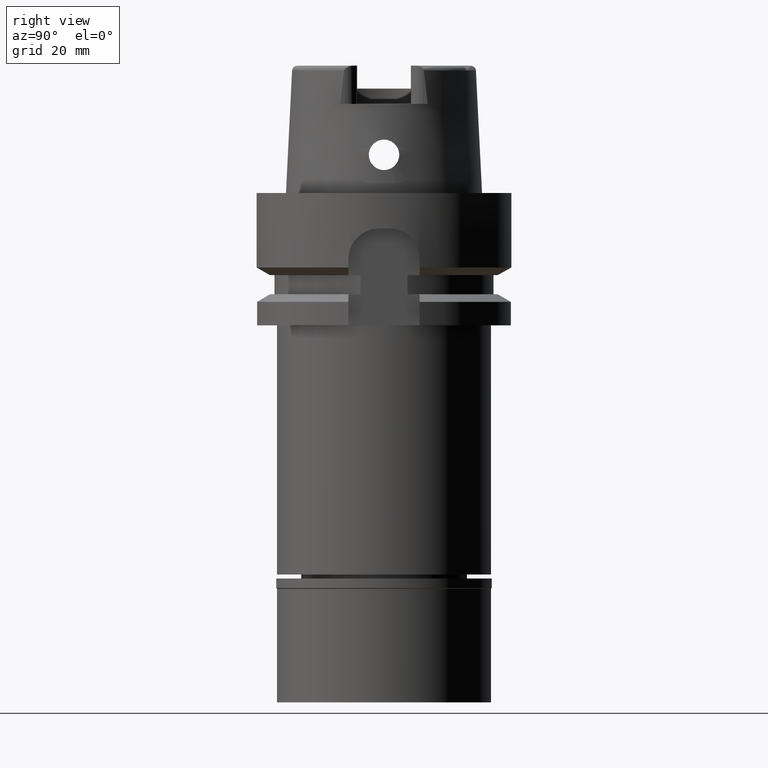
[diagram: clean part render]
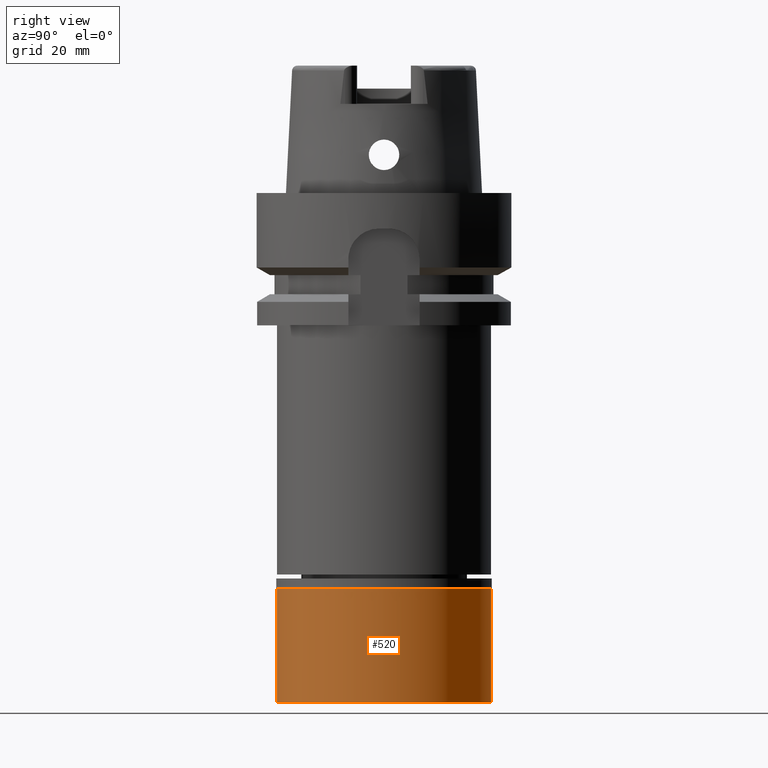
[diagram: same view with one face highlighted and labeled with its STEP entity id]
A machine part, right view. The second image highlights one B-rep face of the part: STEP entity #520.
In plain terms, the highlighted cylindrical surface (partial cylindrical patch) has radius 21 mm, axis along (0, 0, -1).
Its self-contained STEP definition (entity closure, byte-faithful):
#129 = ORIENTED_EDGE ( 'NONE', *, *, #5156, .F. ) ;
#210 = ORIENTED_EDGE ( 'NONE', *, *, #2256, .T. ) ;
#215 = CARTESIAN_POINT ( 'NONE',  ( 0.0000000000000000000, 0.0000000000000000000, -2.000000000000000000 ) ) ;
#309 = CARTESIAN_POINT ( 'NONE',  ( 0.0000000000000000000, 21.00000000000000000, -24.29999999999999716 ) ) ;
#520 = ADVANCED_FACE ( 'NONE', ( #3443 ), #2605, .T. ) ;
#580 = CARTESIAN_POINT ( 'NONE',  ( 0.0000000000000000000, -21.00000000000000000, -2.000000000000000000 ) ) ;
#617 = DIRECTION ( 'NONE',  ( 0.0000000000000000000, -1.000000000000000000, 0.0000000000000000000 ) ) ;
#631 = DIRECTION ( 'NONE',  ( 0.0000000000000000000, 0.0000000000000000000, -1.000000000000000000 ) ) ;
#802 = LINE ( 'NONE', #3405, #4510 ) ;
#815 = VERTEX_POINT ( 'NONE', #309 ) ;
#851 = VERTEX_POINT ( 'NONE', #2386 ) ;
#871 = ORIENTED_EDGE ( 'NONE', *, *, #4714, .T. ) ;
#892 = AXIS2_PLACEMENT_3D ( 'NONE', #215, #631, #5267 ) ;
#1088 = CARTESIAN_POINT ( 'NONE',  ( 0.0000000000000000000, 0.0000000000000000000, -24.29999999999999716 ) ) ;
#1200 = EDGE_CURVE ( 'NONE', #3150, #1659, #2192, .T. ) ;
#1240 = DIRECTION ( 'NONE',  ( 0.0000000000000000000, -1.000000000000000000, 0.0000000000000000000 ) ) ;
#1659 = VERTEX_POINT ( 'NONE', #2770 ) ;
#2190 = EDGE_LOOP ( 'NONE', ( #871, #5378, #210, #129 ) ) ;
#2192 = LINE ( 'NONE', #580, #2763 ) ;
#2256 = EDGE_CURVE ( 'NONE', #1659, #815, #2503, .T. ) ;
#2341 = AXIS2_PLACEMENT_3D ( 'NONE', #1088, #3209, #617 ) ;
#2386 = CARTESIAN_POINT ( 'NONE',  ( 0.0000000000000000000, 21.00000000000000000, -2.000000000000000000 ) ) ;
#2503 = CIRCLE ( 'NONE', #2341, 21.00000000000000000 ) ;
#2605 = CYLINDRICAL_SURFACE ( 'NONE', #4730, 21.00000000000000000 ) ;
#2763 = VECTOR ( 'NONE', #3059, 1000.000000000000000 ) ;
#2770 = CARTESIAN_POINT ( 'NONE',  ( 0.0000000000000000000, -21.00000000000000000, -24.29999999999999716 ) ) ;
#2854 = CARTESIAN_POINT ( 'NONE',  ( 0.0000000000000000000, -21.00000000000000000, -2.000000000000000000 ) ) ;
#3005 = CIRCLE ( 'NONE', #892, 21.00000000000000000 ) ;
#3059 = DIRECTION ( 'NONE',  ( 0.0000000000000000000, 0.0000000000000000000, -1.000000000000000000 ) ) ;
#3150 = VERTEX_POINT ( 'NONE', #2854 ) ;
#3209 = DIRECTION ( 'NONE',  ( 0.0000000000000000000, 0.0000000000000000000, 1.000000000000000000 ) ) ;
#3331 = DIRECTION ( 'NONE',  ( 0.0000000000000000000, 0.0000000000000000000, -1.000000000000000000 ) ) ;
#3405 = CARTESIAN_POINT ( 'NONE',  ( 0.0000000000000000000, 21.00000000000000000, -2.000000000000000000 ) ) ;
#3443 = FACE_OUTER_BOUND ( 'NONE', #2190, .T. ) ;
#4298 = CARTESIAN_POINT ( 'NONE',  ( 0.0000000000000000000, 0.0000000000000000000, 0.0000000000000000000 ) ) ;
#4510 = VECTOR ( 'NONE', #5115, 1000.000000000000000 ) ;
#4714 = EDGE_CURVE ( 'NONE', #851, #3150, #3005, .T. ) ;
#4730 = AXIS2_PLACEMENT_3D ( 'NONE', #4298, #3331, #1240 ) ;
#5115 = DIRECTION ( 'NONE',  ( 0.0000000000000000000, 0.0000000000000000000, -1.000000000000000000 ) ) ;
#5156 = EDGE_CURVE ( 'NONE', #851, #815, #802, .T. ) ;
#5267 = DIRECTION ( 'NONE',  ( 0.0000000000000000000, 1.000000000000000000, 0.0000000000000000000 ) ) ;
#5378 = ORIENTED_EDGE ( 'NONE', *, *, #1200, .T. ) ;